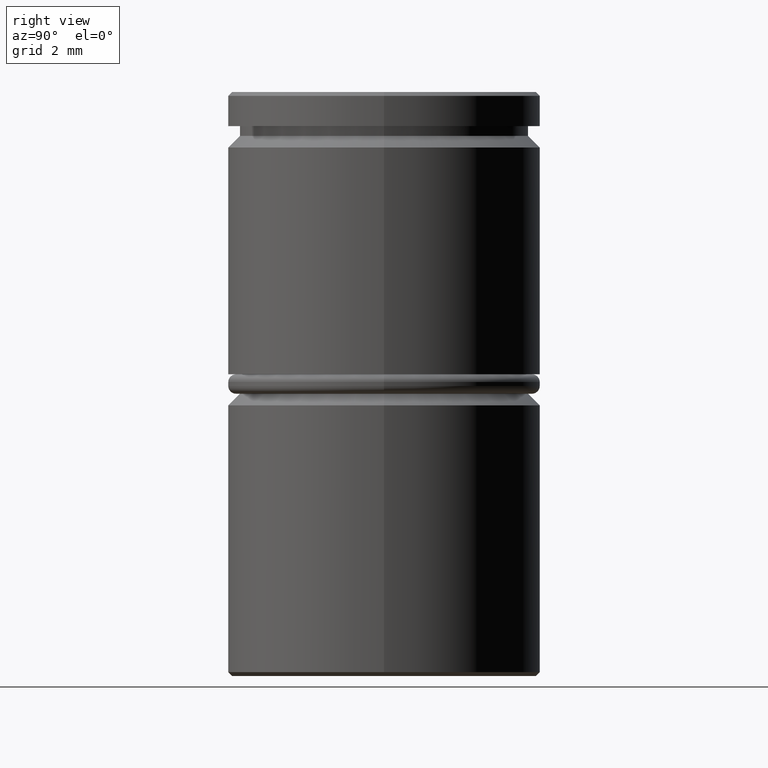
[diagram: clean part render]
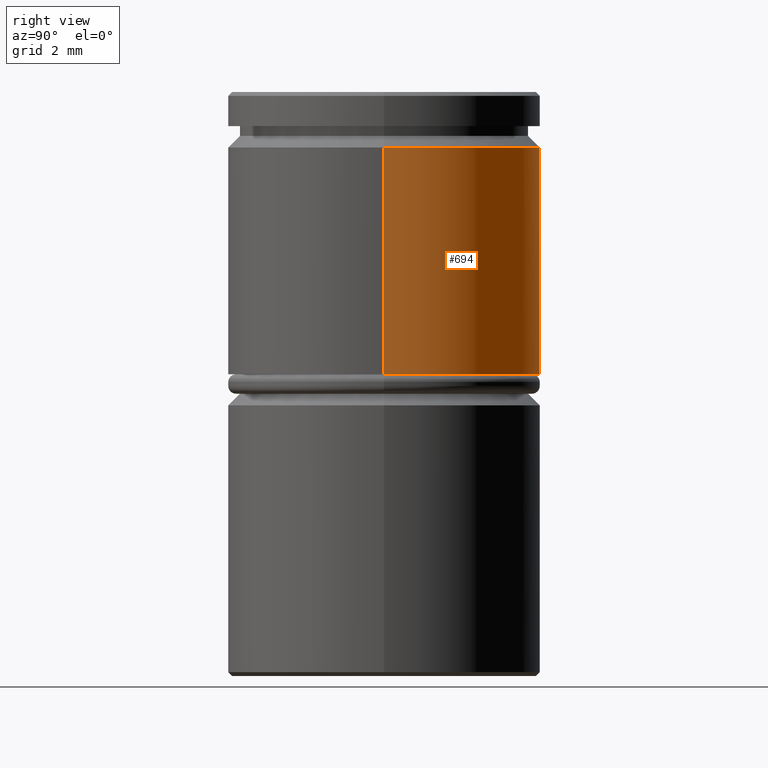
[diagram: same view with one face highlighted and labeled with its STEP entity id]
A machine part, right view. The second image highlights one B-rep face of the part: STEP entity #694.
In plain terms, the highlighted cylindrical surface (partial cylindrical patch) has radius 4 mm, axis along (-0, -0, 1).
Its self-contained STEP definition (entity closure, byte-faithful):
#38 = DIRECTION ( 'NONE',  ( -0.000000000000000000, -0.000000000000000000, 1.000000000000000000 ) ) ;
#41 = FACE_OUTER_BOUND ( 'NONE', #268, .T. ) ;
#49 = ORIENTED_EDGE ( 'NONE', *, *, #1113, .T. ) ;
#83 = ORIENTED_EDGE ( 'NONE', *, *, #264, .T. ) ;
#97 = CARTESIAN_POINT ( 'NONE',  ( 4.000000000000000000, 0.000000000000000000, -7.249999999999999112 ) ) ;
#115 = LINE ( 'NONE', #472, #329 ) ;
#160 = CIRCLE ( 'NONE', #1074, 4.000000000000000000 ) ;
#216 = CYLINDRICAL_SURFACE ( 'NONE', #864, 4.000000000000000000 ) ;
#233 = DIRECTION ( 'NONE',  ( -0.000000000000000000, -0.000000000000000000, 1.000000000000000000 ) ) ;
#262 = ORIENTED_EDGE ( 'NONE', *, *, #476, .T. ) ;
#264 = EDGE_CURVE ( 'NONE', #1038, #397, #160, .T. ) ;
#268 = EDGE_LOOP ( 'NONE', ( #262, #49, #83, #631 ) ) ;
#306 = CIRCLE ( 'NONE', #1094, 4.000000000000000000 ) ;
#320 = DIRECTION ( 'NONE',  ( 1.000000000000000000, 0.000000000000000000, 0.000000000000000000 ) ) ;
#329 = VECTOR ( 'NONE', #478, 1000.000000000000000 ) ;
#368 = CARTESIAN_POINT ( 'NONE',  ( 0.000000000000000000, 0.000000000000000000, -1.424999999999996492 ) ) ;
#397 = VERTEX_POINT ( 'NONE', #427 ) ;
#408 = DIRECTION ( 'NONE',  ( 1.000000000000000000, 0.000000000000000000, 0.000000000000000000 ) ) ;
#427 = CARTESIAN_POINT ( 'NONE',  ( 4.000000000000000000, 0.000000000000000000, -1.424999999999996492 ) ) ;
#472 = CARTESIAN_POINT ( 'NONE',  ( -4.000000000000000000, 4.898587196589412829E-16, 0.000000000000000000 ) ) ;
#476 = EDGE_CURVE ( 'NONE', #947, #1095, #306, .T. ) ;
#478 = DIRECTION ( 'NONE',  ( -0.000000000000000000, -0.000000000000000000, 1.000000000000000000 ) ) ;
#506 = CARTESIAN_POINT ( 'NONE',  ( 4.000000000000000000, 0.000000000000000000, 0.000000000000000000 ) ) ;
#631 = ORIENTED_EDGE ( 'NONE', *, *, #730, .F. ) ;
#694 = ADVANCED_FACE ( 'NONE', ( #41 ), #216, .T. ) ;
#705 = DIRECTION ( 'NONE',  ( -0.000000000000000000, -0.000000000000000000, 1.000000000000000000 ) ) ;
#730 = EDGE_CURVE ( 'NONE', #947, #397, #1034, .T. ) ;
#751 = CARTESIAN_POINT ( 'NONE',  ( 0.000000000000000000, 0.000000000000000000, 0.000000000000000000 ) ) ;
#864 = AXIS2_PLACEMENT_3D ( 'NONE', #751, #38, #320 ) ;
#926 = DIRECTION ( 'NONE',  ( 0.000000000000000000, 0.000000000000000000, -1.000000000000000000 ) ) ;
#947 = VERTEX_POINT ( 'NONE', #97 ) ;
#972 = CARTESIAN_POINT ( 'NONE',  ( -4.000000000000000000, 4.898587196589412829E-16, -7.249999999999999112 ) ) ;
#1034 = LINE ( 'NONE', #506, #1170 ) ;
#1038 = VERTEX_POINT ( 'NONE', #1053 ) ;
#1053 = CARTESIAN_POINT ( 'NONE',  ( -4.000000000000000000, 4.898587196589412829E-16, -1.424999999999996492 ) ) ;
#1060 = DIRECTION ( 'NONE',  ( 1.000000000000000000, 0.000000000000000000, 0.000000000000000000 ) ) ;
#1074 = AXIS2_PLACEMENT_3D ( 'NONE', #368, #926, #408 ) ;
#1094 = AXIS2_PLACEMENT_3D ( 'NONE', #1160, #705, #1060 ) ;
#1095 = VERTEX_POINT ( 'NONE', #972 ) ;
#1113 = EDGE_CURVE ( 'NONE', #1095, #1038, #115, .T. ) ;
#1160 = CARTESIAN_POINT ( 'NONE',  ( 0.000000000000000000, 0.000000000000000000, -7.249999999999999112 ) ) ;
#1170 = VECTOR ( 'NONE', #233, 1000.000000000000000 ) ;